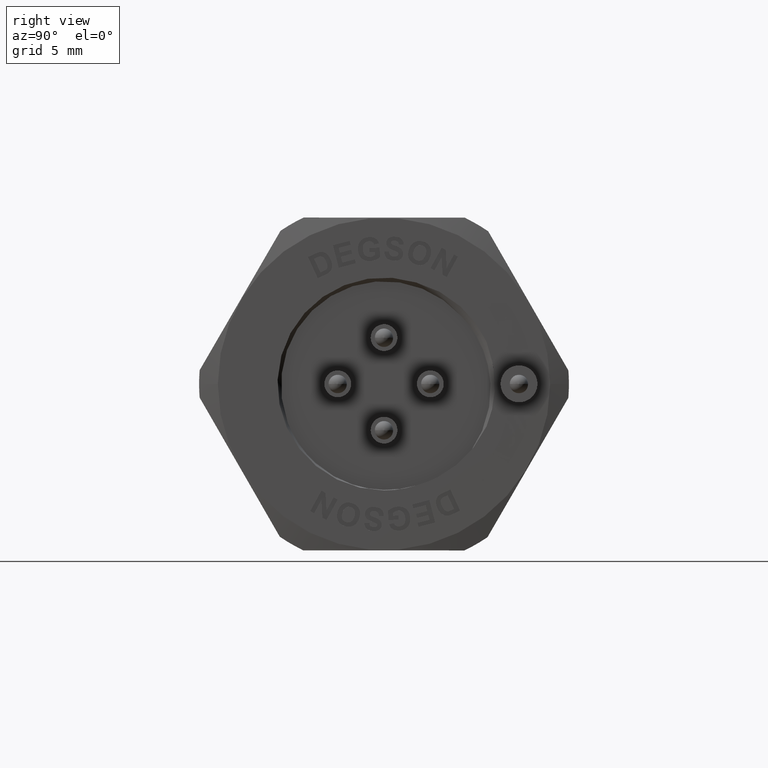
[diagram: clean part render]
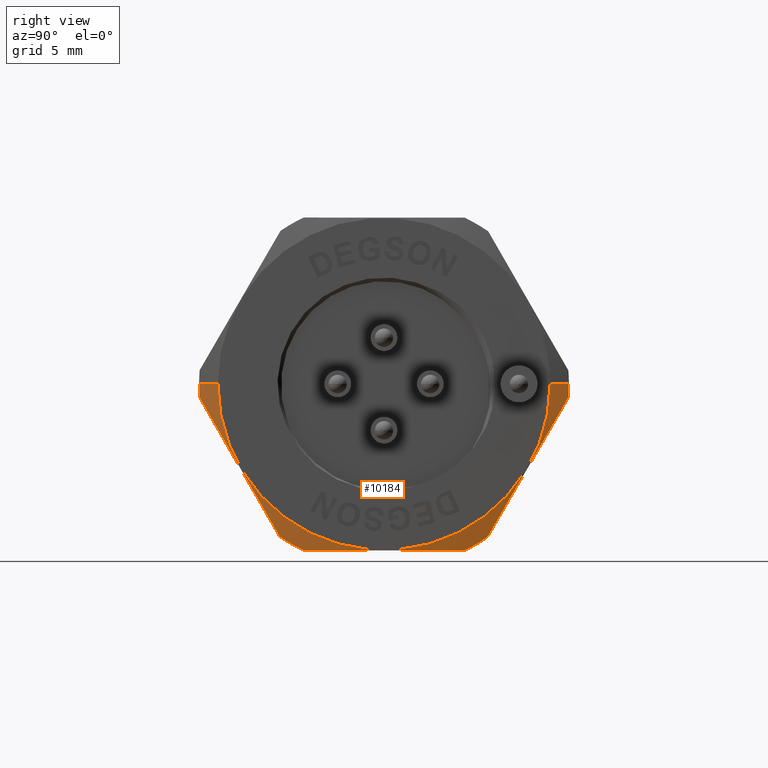
[diagram: same view with one face highlighted and labeled with its STEP entity id]
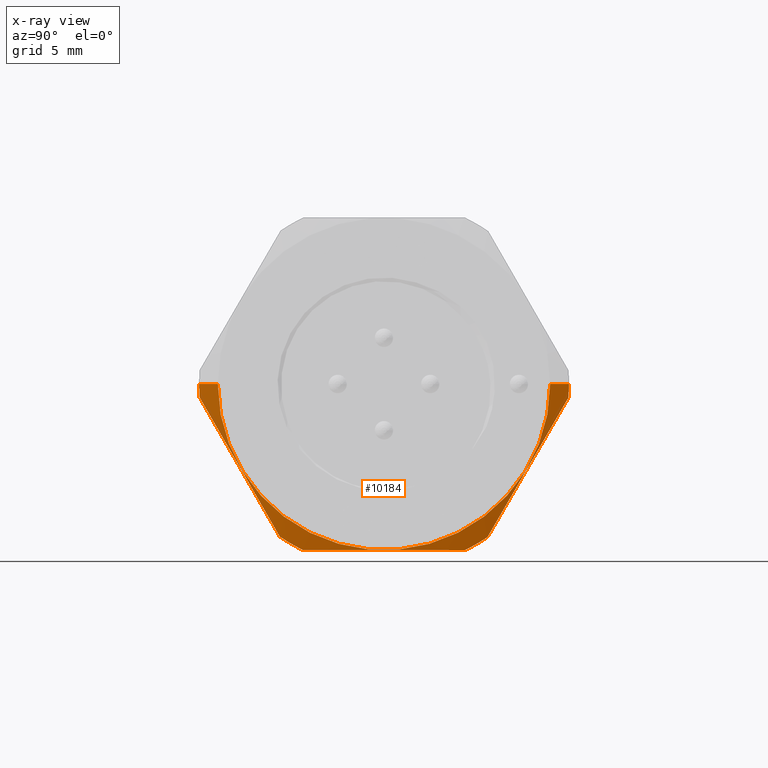
[diagram: x-ray of the same camera — body ghosted, the highlighted face saturated]
A machine part, right view. The second image highlights one B-rep face of the part: STEP entity #10184.
The next image is the same camera in x-ray: the body ghosted, the highlighted face saturated — about 0% of this face is hidden behind the body in this view.
In plain terms, the highlighted conical surface has half-angle 78 deg.
Its self-contained STEP definition (entity closure, byte-faithful):
#10=CARTESIAN_POINT('',(2.14E1,0.E0,0.E0));
#11=DIRECTION('',(-1.E0,0.E0,0.E0));
#12=DIRECTION('',(0.E0,1.E0,0.E0));
#13=AXIS2_PLACEMENT_3D('',#10,#11,#12);
#1059=CARTESIAN_POINT('',(2.118502262467E1,0.E0,0.E0));
#1060=DIRECTION('',(-1.E0,0.E0,0.E0));
#1061=DIRECTION('',(0.E0,-9.973085075786E-1,-7.331944292828E-2));
#1062=AXIS2_PLACEMENT_3D('',#1059,#1060,#1061);
#1064=DIRECTION('',(2.079116908136E-1,9.781476007347E-1,0.E0));
#1065=VECTOR('',#1064,1.033984065477E0);
#1066=CARTESIAN_POINT('',(2.118502262467E1,-1.E1,0.E0));
#1067=LINE('',#1066,#1065);
#1068=DIRECTION('',(-2.079116908136E-1,9.781476007347E-1,0.E0));
#1069=VECTOR('',#1068,1.033984065477E0);
#1070=CARTESIAN_POINT('',(2.14E1,8.988610967156E0,0.E0));
#1071=LINE('',#1070,#1069);
#1072=CARTESIAN_POINT('',(2.118502262467E1,0.E0,0.E0));
#1073=DIRECTION('',(-1.E0,0.E0,0.E0));
#1074=DIRECTION('',(0.E0,1.E0,0.E0));
#1075=AXIS2_PLACEMENT_3D('',#1072,#1073,#1074);
#1077=CARTESIAN_POINT('',(2.118502262467E1,9.972171017071E0,
-7.455234445081E-1));
#1078=CARTESIAN_POINT('',(2.122384499872E1,9.761919616012E0,-1.107971911159E0));
#1079=CARTESIAN_POINT('',(2.129208293242E1,9.342871605973E0,-1.830360955548E0));
#1080=CARTESIAN_POINT('',(2.136243284086E1,8.722930216734E0,-2.899066347334E0));
#1081=CARTESIAN_POINT('',(2.139910116322E1,8.098211892713E0,-3.976006607847E0));
#1082=CARTESIAN_POINT('',(2.139909460887E1,7.471641069404E0,-5.056140357313E0));
#1083=CARTESIAN_POINT('',(2.136243698534E1,6.847140906018E0,-6.132704534780E0));
#1084=CARTESIAN_POINT('',(2.129211243730E1,6.227314326506E0,-7.201212008222E0));
#1085=CARTESIAN_POINT('',(2.122386236769E1,5.808152453410E0,-7.923797339006E0));
#1086=CARTESIAN_POINT('',(2.118502262467E1,5.597806986747E0,-8.286407963595E0));
#1088=CARTESIAN_POINT('',(2.118502262467E1,0.E0,0.E0));
#1089=DIRECTION('',(-1.E0,0.E0,0.E0));
#1090=DIRECTION('',(0.E0,5.597806986747E-1,-8.286407963595E-1));
#1091=AXIS2_PLACEMENT_3D('',#1088,#1089,#1090);
#1093=CARTESIAN_POINT('',(2.118502262467E1,4.358898943541E0,-9.E0));
#1094=CARTESIAN_POINT('',(2.122385549601E1,3.939769484222E0,-9.E0));
#1095=CARTESIAN_POINT('',(2.129210069875E1,3.104489837882E0,-9.E0));
#1096=CARTESIAN_POINT('',(2.136243246315E1,1.869217151940E0,-9.E0));
#1097=CARTESIAN_POINT('',(2.139910071647E1,6.242588420057E-1,-9.E0));
#1098=CARTESIAN_POINT('',(2.139909512561E1,-6.244498973655E-1,-9.E0));
#1099=CARTESIAN_POINT('',(2.136243702477E1,-1.869105159878E0,-9.E0));
#1100=CARTESIAN_POINT('',(2.129209524885E1,-3.104585883833E0,-9.E0));
#1101=CARTESIAN_POINT('',(2.122385223929E1,-3.939804634471E0,-9.E0));
#1102=CARTESIAN_POINT('',(2.118502262467E1,-4.358898943541E0,-9.E0));
#1104=CARTESIAN_POINT('',(2.118502262467E1,0.E0,0.E0));
#1105=DIRECTION('',(-1.E0,0.E0,0.E0));
#1106=DIRECTION('',(0.E0,-4.358898943541E-1,-9.E-1));
#1107=AXIS2_PLACEMENT_3D('',#1104,#1105,#1106);
#1109=CARTESIAN_POINT('',(2.118502262467E1,-5.638446748229E0,
-8.258808525894E0));
#1110=CARTESIAN_POINT('',(2.122353792520E1,-5.846719437160E0,
-7.897214370786E0));
#1111=CARTESIAN_POINT('',(2.129123251506E1,-6.261869213681E0,
-7.176449044061E0));
#1112=CARTESIAN_POINT('',(2.136102398915E1,-6.876260174027E0,
-6.109769676001E0));
#1113=CARTESIAN_POINT('',(2.139738849243E1,-7.495355365572E0,
-5.034923022472E0));
#1114=CARTESIAN_POINT('',(2.139738246194E1,-8.116286912928E0,
-3.956888166346E0));
#1115=CARTESIAN_POINT('',(2.136102823910E1,-8.735195448973E0,
-2.882365576130E0));
#1116=CARTESIAN_POINT('',(2.129124705241E1,-9.349564330789E0,
-1.815724539873E0));
#1117=CARTESIAN_POINT('',(2.122354646418E1,-9.764766212043E0,
-1.094868751133E0));
#1118=CARTESIAN_POINT('',(2.118502262467E1,-9.973085075787E0,
-7.331944292832E-1));
#8387=CARTESIAN_POINT('',(2.14E1,-8.988610967156E0,0.E0));
#8388=CARTESIAN_POINT('',(2.14E1,8.988610967156E0,0.E0));
#8389=VERTEX_POINT('',#8387);
#8390=VERTEX_POINT('',#8388);
#8699=CARTESIAN_POINT('',(2.118502262467E1,1.E1,0.E0));
#8701=VERTEX_POINT('',#8699);
#8704=CARTESIAN_POINT('',(2.118502262467E1,-1.E1,0.E0));
#8706=VERTEX_POINT('',#8704);
#8716=CARTESIAN_POINT('',(2.118502262467E1,-4.358898943541E0,-9.E0));
#8718=VERTEX_POINT('',#8716);
#8719=VERTEX_POINT('',#1093);
#8722=CARTESIAN_POINT('',(2.118502262467E1,-9.973085075787E0,
-7.331944292828E-1));
#8723=VERTEX_POINT('',#8722);
#8724=CARTESIAN_POINT('',(2.118502262467E1,9.972171017070E0,
-7.455234445076E-1));
#8725=VERTEX_POINT('',#8724);
#8726=CARTESIAN_POINT('',(2.118502262467E1,5.597806986747E0,-8.286407963595E0));
#8727=VERTEX_POINT('',#8726);
#8728=CARTESIAN_POINT('',(2.118502262467E1,-5.638446748229E0,
-8.258808525895E0));
#8729=VERTEX_POINT('',#8728);
#10162=CARTESIAN_POINT('',(2.129251131234E1,0.E0,0.E0));
#10163=DIRECTION('',(-1.E0,0.E0,0.E0));
#10164=DIRECTION('',(0.E0,1.E0,0.E0));
#10165=AXIS2_PLACEMENT_3D('',#10162,#10163,#10164);
#10166=CONICAL_SURFACE('',#10165,9.494305483578E0,7.800000000031E1);
#10167=ORIENTED_EDGE('',*,*,#10151,.T.);
#10168=ORIENTED_EDGE('',*,*,#10017,.T.);
#10169=ORIENTED_EDGE('',*,*,#9573,.F.);
#10170=ORIENTED_EDGE('',*,*,#10014,.T.);
#10171=ORIENTED_EDGE('',*,*,#10045,.T.);
#10173=ORIENTED_EDGE('',*,*,#10172,.T.);
#10175=ORIENTED_EDGE('',*,*,#10174,.T.);
#10177=ORIENTED_EDGE('',*,*,#10176,.T.);
#10179=ORIENTED_EDGE('',*,*,#10178,.T.);
#10181=ORIENTED_EDGE('',*,*,#10180,.T.);
#10182=EDGE_LOOP('',(#10167,#10168,#10169,#10170,#10171,#10173,#10175,#10177,
#10179,#10181));
#10183=FACE_OUTER_BOUND('',#10182,.F.);
#10184=ADVANCED_FACE('',(#10183),#10166,.T.);
#14=CIRCLE('',#13,8.988610967156E0);
#1063=CIRCLE('',#1062,1.E1);
#1076=CIRCLE('',#1075,1.E1);
#1087=B_SPLINE_CURVE_WITH_KNOTS('',3,(#1077,#1078,#1079,#1080,#1081,#1082,#1083,
#1084,#1085,#1086),.UNSPECIFIED.,.F.,.F.,(4,1,1,1,1,1,1,4),(0.E0,
1.428571428571E-1,2.857142857143E-1,4.285714285714E-1,5.714285714286E-1,
7.142857142857E-1,8.571428571429E-1,1.E0),.UNSPECIFIED.);
#1092=CIRCLE('',#1091,1.E1);
#1103=B_SPLINE_CURVE_WITH_KNOTS('',3,(#1093,#1094,#1095,#1096,#1097,#1098,#1099,
#1100,#1101,#1102),.UNSPECIFIED.,.F.,.F.,(4,1,1,1,1,1,1,4),(0.E0,
1.428571428571E-1,2.857142857143E-1,4.285714285714E-1,5.714285714286E-1,
7.142857142857E-1,8.571428571429E-1,1.E0),.UNSPECIFIED.);
#1108=CIRCLE('',#1107,1.E1);
#1119=B_SPLINE_CURVE_WITH_KNOTS('',3,(#1109,#1110,#1111,#1112,#1113,#1114,#1115,
#1116,#1117,#1118),.UNSPECIFIED.,.F.,.F.,(4,1,1,1,1,1,1,4),(0.E0,
1.428571428571E-1,2.857142857143E-1,4.285714285714E-1,5.714285714286E-1,
7.142857142857E-1,8.571428571429E-1,1.E0),.UNSPECIFIED.);
#9573=EDGE_CURVE('',#8390,#8389,#14,.T.);
#10014=EDGE_CURVE('',#8390,#8701,#1071,.T.);
#10017=EDGE_CURVE('',#8706,#8389,#1067,.T.);
#10045=EDGE_CURVE('',#8701,#8725,#1076,.T.);
#10151=EDGE_CURVE('',#8723,#8706,#1063,.T.);
#10172=EDGE_CURVE('',#8725,#8727,#1087,.T.);
#10174=EDGE_CURVE('',#8727,#8719,#1092,.T.);
#10176=EDGE_CURVE('',#8719,#8718,#1103,.T.);
#10178=EDGE_CURVE('',#8718,#8729,#1108,.T.);
#10180=EDGE_CURVE('',#8729,#8723,#1119,.T.);